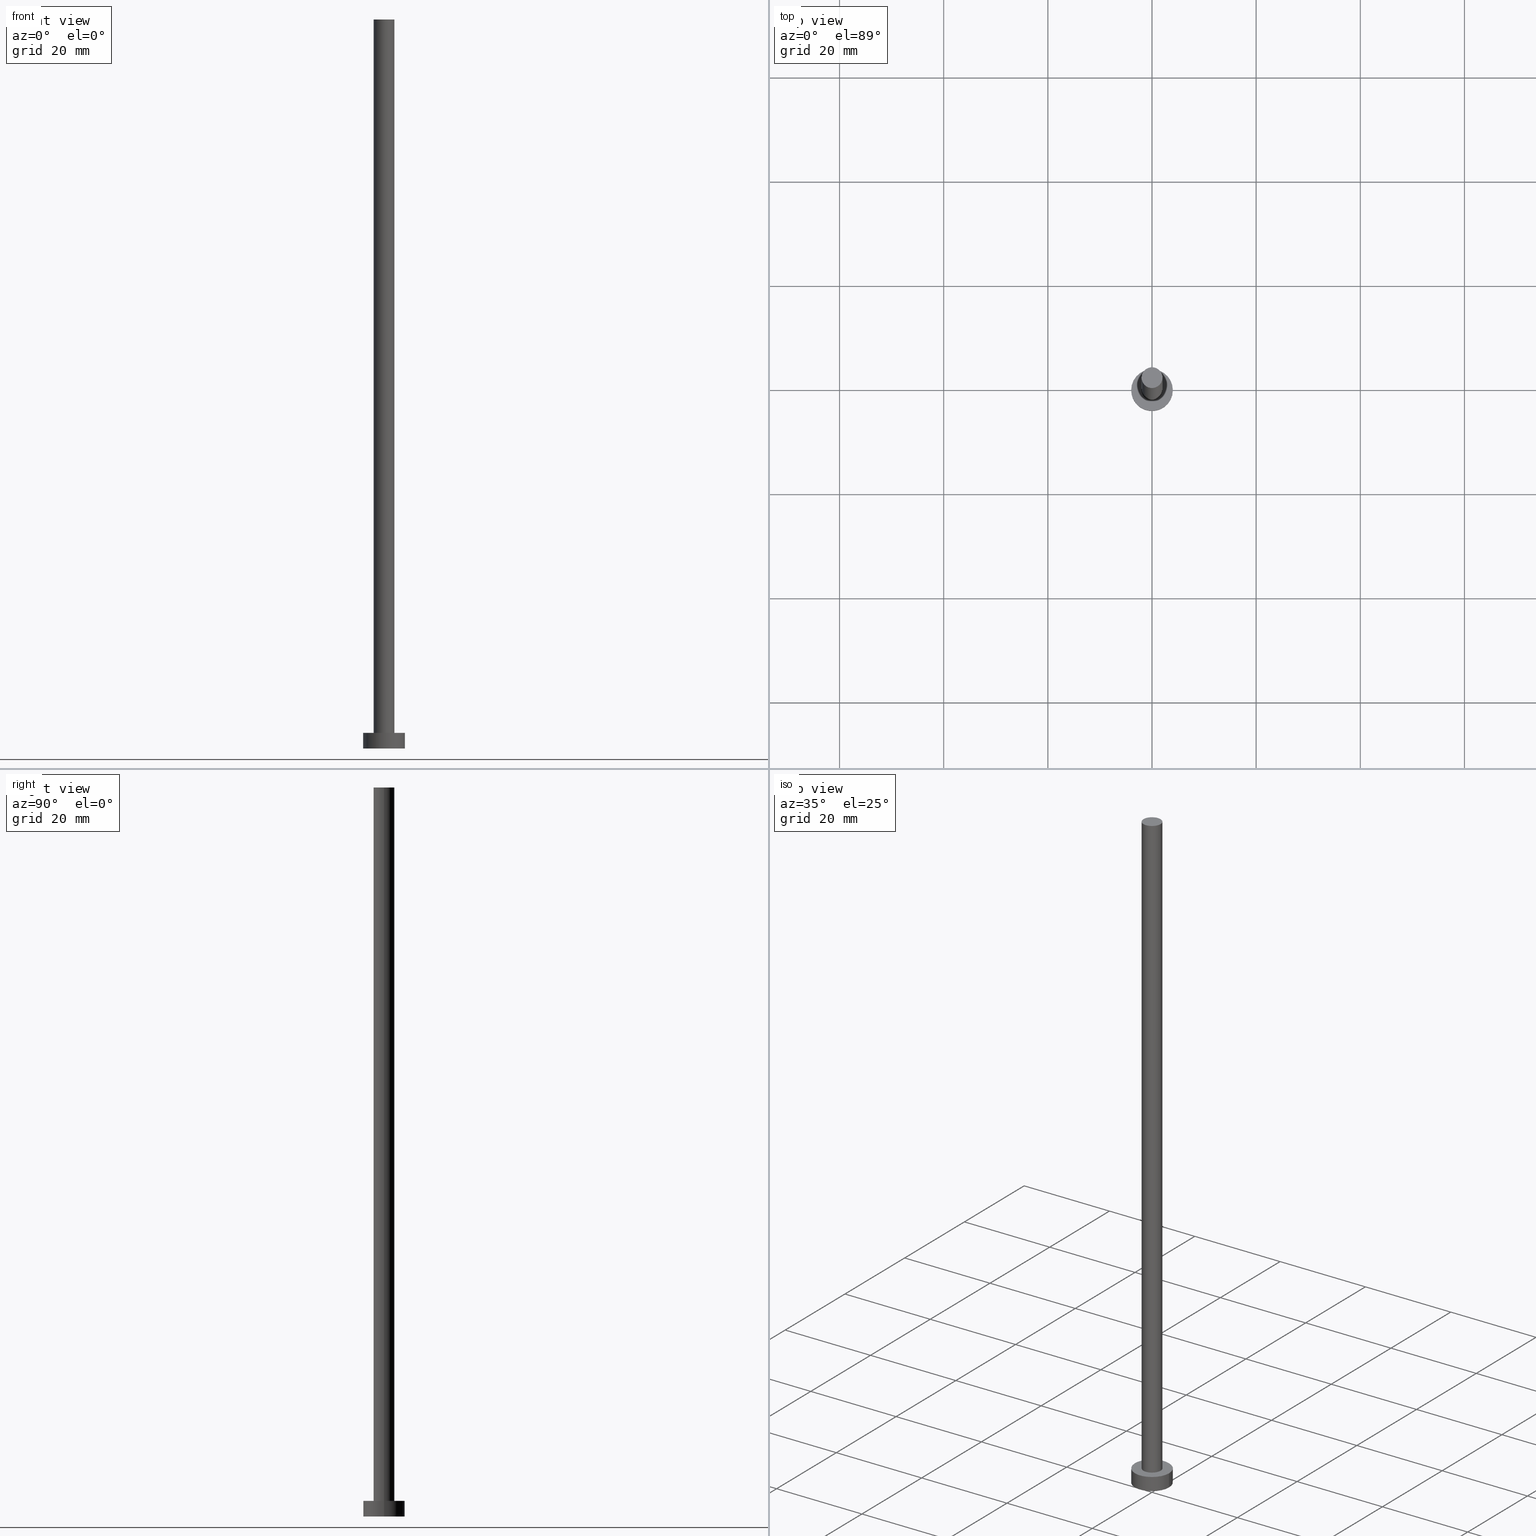
[diagram: canonical four-view strip — front | top / right | iso, engineering-drawing reading convention]
A machine part, canonical four-view strip (front | top / right | iso — engineering-drawing reading convention). The complete STEP part file that produces these views, byte-faithful:
ISO-10303-21;
HEADER;
FILE_DESCRIPTION (( 'STEP AP203' ),
    '1' );
FILE_NAME ('98c5.STEP',
    '2023-09-27T12:22:14',
    ( '' ),
    ( '' ),
    'SwSTEP 2.0',
    'SolidWorks 2019',
    '' );
FILE_SCHEMA (( 'CONFIG_CONTROL_DESIGN' ));
ENDSEC;

DATA;
#1 = AXIS2_PLACEMENT_3D ( 'NONE', #230, #71, #149 ) ;
#2 = ORIENTED_EDGE ( 'NONE', *, *, #96, .F. ) ;
#3 = ORIENTED_EDGE ( 'NONE', *, *, #45, .F. ) ;
#4 = APPLICATION_PROTOCOL_DEFINITION ( 'international standard', 'config_control_design', 1994, #29 ) ;
#5 = CIRCLE ( 'NONE', #251, 4.000000000000000000 ) ;
#6 = ORIENTED_EDGE ( 'NONE', *, *, #28, .F. ) ;
#7 = APPROVAL ( #93, 'NEUR�EN�' ) ;
#8 = CARTESIAN_POINT ( 'NONE',  ( 2.000000000000000000, 2.449293598294706414E-16, 140.0000000000000000 ) ) ;
#9 = COORDINATED_UNIVERSAL_TIME_OFFSET ( 1, 0, .AHEAD. ) ;
#10 = CARTESIAN_POINT ( 'NONE',  ( -4.000000000000000000, 0.000000000000000000, 0.000000000000000000 ) ) ;
#11 = PERSON_AND_ORGANIZATION ( #114, #170 ) ;
#12 = CARTESIAN_POINT ( 'NONE',  ( -4.000000000000000000, 0.000000000000000000, 3.000000000000000000 ) ) ;
#13 = CALENDAR_DATE ( 2023, 27, 9 ) ;
#14 = VERTEX_POINT ( 'NONE', #19 ) ;
#15 = CC_DESIGN_PERSON_AND_ORGANIZATION_ASSIGNMENT ( #131, #185, ( #197 ) ) ;
#16 = VERTEX_POINT ( 'NONE', #60 ) ;
#17 = EDGE_LOOP ( 'NONE', ( #237, #176 ) ) ;
#18 = EDGE_CURVE ( 'NONE', #190, #16, #77, .T. ) ;
#19 = CARTESIAN_POINT ( 'NONE',  ( 2.000000000000000000, 2.449293598294706414E-16, 140.0000000000000000 ) ) ;
#20 = DIRECTION ( 'NONE',  ( -0.000000000000000000, -0.000000000000000000, -1.000000000000000000 ) ) ;
#21 = AXIS2_PLACEMENT_3D ( 'NONE', #152, #164, #250 ) ;
#22 = CYLINDRICAL_SURFACE ( 'NONE', #193, 2.000000000000000000 ) ;
#23 = CARTESIAN_POINT ( 'NONE',  ( 0.000000000000000000, 0.000000000000000000, 3.000000000000000000 ) ) ;
#24 = CARTESIAN_POINT ( 'NONE',  ( 0.000000000000000000, 0.000000000000000000, 0.000000000000000000 ) ) ;
#25 = AXIS2_PLACEMENT_3D ( 'NONE', #85, #222, #245 ) ;
#26 = VECTOR ( 'NONE', #218, 1000.000000000000000 ) ;
#27 = PERSON_AND_ORGANIZATION ( #114, #170 ) ;
#28 = EDGE_CURVE ( 'NONE', #142, #74, #106, .T. ) ;
#29 = APPLICATION_CONTEXT ( 'configuration controlled 3d designs of mechanical parts and assemblies' ) ;
#30 = DIRECTION ( 'NONE',  ( 1.000000000000000000, 0.000000000000000000, 0.000000000000000000 ) ) ;
#31 = CIRCLE ( 'NONE', #1, 2.000000000000000000 ) ;
#32 = EDGE_LOOP ( 'NONE', ( #117, #154, #42, #116 ) ) ;
#33 = CC_DESIGN_DATE_AND_TIME_ASSIGNMENT ( #54, #50, ( #121 ) ) ;
#34 = DATE_AND_TIME ( #208, #186 ) ;
#35 = DIRECTION ( 'NONE',  ( 1.000000000000000000, 0.000000000000000000, 0.000000000000000000 ) ) ;
#36 = EDGE_CURVE ( 'NONE', #194, #140, #105, .T. ) ;
#37 = DIRECTION ( 'NONE',  ( 1.000000000000000000, 0.000000000000000000, 0.000000000000000000 ) ) ;
#38 = CARTESIAN_POINT ( 'NONE',  ( 0.000000000000000000, 0.000000000000000000, 0.000000000000000000 ) ) ;
#39 = APPLICATION_CONTEXT ( 'configuration controlled 3d designs of mechanical parts and assemblies' ) ;
#40 = FACE_OUTER_BOUND ( 'NONE', #32, .T. ) ;
#41 = ADVANCED_FACE ( 'NONE', ( #40 ), #159, .T. ) ;
#42 = ORIENTED_EDGE ( 'NONE', *, *, #96, .T. ) ;
#43 = PLANE ( 'NONE',  #25 ) ;
#44 = DIRECTION ( 'NONE',  ( 0.000000000000000000, 0.000000000000000000, 1.000000000000000000 ) ) ;
#45 = EDGE_CURVE ( 'NONE', #140, #171, #110, .T. ) ;
#46 = DIRECTION ( 'NONE',  ( 0.000000000000000000, 0.000000000000000000, 1.000000000000000000 ) ) ;
#47 = PERSON_AND_ORGANIZATION ( #114, #170 ) ;
#48 = CARTESIAN_POINT ( 'NONE',  ( 2.000000000000000000, 2.449293598294706414E-16, 3.000000000000000000 ) ) ;
#49 = APPROVAL ( #204, 'NEUR�EN�' ) ;
#50 = DATE_TIME_ROLE ( 'creation_date' ) ;
#51 = PLANE ( 'NONE',  #221 ) ;
#52 = PERSON_AND_ORGANIZATION_ROLE ( 'classification_officer' ) ;
#53 = ORIENTED_EDGE ( 'NONE', *, *, #28, .T. ) ;
#54 = DATE_AND_TIME ( #151, #181 ) ;
#55 = APPROVAL_PERSON_ORGANIZATION ( #150, #49, #90 ) ;
#56 = ORIENTED_EDGE ( 'NONE', *, *, #45, .T. ) ;
#57 = FACE_OUTER_BOUND ( 'NONE', #179, .T. ) ;
#58 = ORIENTED_EDGE ( 'NONE', *, *, #36, .F. ) ;
#59 =( NAMED_UNIT ( * ) SI_UNIT ( $, .STERADIAN. ) SOLID_ANGLE_UNIT ( ) );
#60 = CARTESIAN_POINT ( 'NONE',  ( 4.000000000000000000, 4.898587196589412829E-16, 0.000000000000000000 ) ) ;
#61 = DIRECTION ( 'NONE',  ( 0.000000000000000000, 0.000000000000000000, 1.000000000000000000 ) ) ;
#62 = EDGE_LOOP ( 'NONE', ( #75, #6, #95, #97 ) ) ;
#63 = CYLINDRICAL_SURFACE ( 'NONE', #212, 4.000000000000000000 ) ;
#64 = CARTESIAN_POINT ( 'NONE',  ( 0.000000000000000000, 0.000000000000000000, 140.0000000000000000 ) ) ;
#65 = EDGE_CURVE ( 'NONE', #194, #14, #246, .T. ) ;
#66 = AXIS2_PLACEMENT_3D ( 'NONE', #38, #216, #215 ) ;
#67 = PERSON_AND_ORGANIZATION ( #114, #170 ) ;
#68 = DIRECTION ( 'NONE',  ( 0.000000000000000000, 0.000000000000000000, 1.000000000000000000 ) ) ;
#69 = ADVANCED_BREP_SHAPE_REPRESENTATION ( '98c5', ( #112, #161 ), #80 ) ;
#70 = PRODUCT_RELATED_PRODUCT_CATEGORY ( 'detail', '', ( #102 ) ) ;
#71 = DIRECTION ( 'NONE',  ( 0.000000000000000000, 0.000000000000000000, 1.000000000000000000 ) ) ;
#72 = APPROVAL_DATE_TIME ( #225, #109 ) ;
#73 = AXIS2_PLACEMENT_3D ( 'NONE', #88, #68, #30 ) ;
#74 = VERTEX_POINT ( 'NONE', #118 ) ;
#75 = ORIENTED_EDGE ( 'NONE', *, *, #253, .F. ) ;
#76 = FACE_OUTER_BOUND ( 'NONE', #62, .T. ) ;
#77 = CIRCLE ( 'NONE', #233, 4.000000000000000000 ) ;
#78 = CARTESIAN_POINT ( 'NONE',  ( 0.000000000000000000, 0.000000000000000000, 3.000000000000000000 ) ) ;
#79 = LOCAL_TIME ( 14, 22, 14.00000000000000000, #127 ) ;
#80 =( GEOMETRIC_REPRESENTATION_CONTEXT ( 3 ) GLOBAL_UNCERTAINTY_ASSIGNED_CONTEXT ( ( #180 ) ) GLOBAL_UNIT_ASSIGNED_CONTEXT ( ( #139, #155, #59 ) ) REPRESENTATION_CONTEXT ( 'NONE', 'WORKASPACE' ) );
#81 = ORIENTED_EDGE ( 'NONE', *, *, #107, .T. ) ;
#82 = CC_DESIGN_PERSON_AND_ORGANIZATION_ASSIGNMENT ( #11, #184, ( #121 ) ) ;
#83 = DIRECTION ( 'NONE',  ( -0.000000000000000000, -0.000000000000000000, -1.000000000000000000 ) ) ;
#84 = CARTESIAN_POINT ( 'NONE',  ( 4.000000000000000000, 4.898587196589412829E-16, 3.000000000000000000 ) ) ;
#85 = CARTESIAN_POINT ( 'NONE',  ( 0.000000000000000000, 0.000000000000000000, 140.0000000000000000 ) ) ;
#86 = APPLICATION_PROTOCOL_DEFINITION ( 'international standard', 'config_control_design', 1994, #39 ) ;
#87 = CC_DESIGN_APPROVAL ( #109, ( #121 ) ) ;
#88 = CARTESIAN_POINT ( 'NONE',  ( 0.000000000000000000, 0.000000000000000000, 3.000000000000000000 ) ) ;
#89 = APPROVAL_DATE_TIME ( #229, #7 ) ;
#90 = APPROVAL_ROLE ( '' ) ;
#91 = ADVANCED_FACE ( 'NONE', ( #145 ), #22, .T. ) ;
#92 = CARTESIAN_POINT ( 'NONE',  ( -2.000000000000000000, 0.000000000000000000, 140.0000000000000000 ) ) ;
#93 = APPROVAL_STATUS ( 'not_yet_approved' ) ;
#94 = APPROVAL_DATE_TIME ( #165, #49 ) ;
#95 = ORIENTED_EDGE ( 'NONE', *, *, #228, .T. ) ;
#96 = EDGE_CURVE ( 'NONE', #16, #190, #5, .T. ) ;
#97 = ORIENTED_EDGE ( 'NONE', *, *, #18, .T. ) ;
#98 = LINE ( 'NONE', #143, #26 ) ;
#99 = DIRECTION ( 'NONE',  ( 0.000000000000000000, 0.000000000000000000, 1.000000000000000000 ) ) ;
#100 = DIRECTION ( 'NONE',  ( -1.000000000000000000, 0.000000000000000000, 0.000000000000000000 ) ) ;
#101 = SECURITY_CLASSIFICATION ( '', '', #206 ) ;
#102 = PRODUCT ( '98c5', '98c5', '', ( #202 ) ) ;
#103 = CARTESIAN_POINT ( 'NONE',  ( 0.000000000000000000, 0.000000000000000000, 3.000000000000000000 ) ) ;
#104 = LINE ( 'NONE', #84, #144 ) ;
#105 = LINE ( 'NONE', #214, #125 ) ;
#106 = CIRCLE ( 'NONE', #120, 4.000000000000000000 ) ;
#107 = EDGE_CURVE ( 'NONE', #74, #142, #137, .T. ) ;
#108 = PERSON_AND_ORGANIZATION_ROLE ( 'design_owner' ) ;
#109 = APPROVAL ( #167, 'NEUR�EN�' ) ;
#110 = CIRCLE ( 'NONE', #175, 2.000000000000000000 ) ;
#111 = CC_DESIGN_SECURITY_CLASSIFICATION ( #101, ( #197 ) ) ;
#112 = MANIFOLD_SOLID_BREP ( 'P�idat vysunut�m3', #240 ) ;
#113 = COORDINATED_UNIVERSAL_TIME_OFFSET ( 1, 0, .AHEAD. ) ;
#114 = PERSON ( 'NEUR�EN�', 'NEUR�EN�', 'NEUR�EN�', ('NEUR�EN�'), ('NEUR�EN�'), ('NEUR�EN�') ) ;
#115 = ADVANCED_FACE ( 'NONE', ( #243 ), #43, .T. ) ;
#116 = ORIENTED_EDGE ( 'NONE', *, *, #228, .F. ) ;
#117 = ORIENTED_EDGE ( 'NONE', *, *, #107, .F. ) ;
#118 = CARTESIAN_POINT ( 'NONE',  ( 4.000000000000000000, 4.898587196589412829E-16, 3.000000000000000000 ) ) ;
#119 = DIRECTION ( 'NONE',  ( 0.000000000000000000, 0.000000000000000000, 1.000000000000000000 ) ) ;
#120 = AXIS2_PLACEMENT_3D ( 'NONE', #103, #99, #173 ) ;
#121 = PRODUCT_DEFINITION ( 'NEZN�M�', '', #197, #146 ) ;
#122 = LOCAL_TIME ( 14, 22, 14.00000000000000000, #113 ) ;
#123 = LINE ( 'NONE', #8, #224 ) ;
#124 = EDGE_CURVE ( 'NONE', #171, #140, #163, .T. ) ;
#125 = VECTOR ( 'NONE', #83, 1000.000000000000000 ) ;
#126 = AXIS2_PLACEMENT_3D ( 'NONE', #247, #46, #162 ) ;
#127 = COORDINATED_UNIVERSAL_TIME_OFFSET ( 1, 0, .AHEAD. ) ;
#128 = CYLINDRICAL_SURFACE ( 'NONE', #21, 2.000000000000000000 ) ;
#129 = PERSON_AND_ORGANIZATION ( #114, #170 ) ;
#130 = CARTESIAN_POINT ( 'NONE',  ( 0.000000000000000000, 0.000000000000000000, 3.000000000000000000 ) ) ;
#131 = PERSON_AND_ORGANIZATION ( #114, #170 ) ;
#132 = CARTESIAN_POINT ( 'NONE',  ( -2.000000000000000000, 0.000000000000000000, 3.000000000000000000 ) ) ;
#133 = COORDINATED_UNIVERSAL_TIME_OFFSET ( 1, 0, .AHEAD. ) ;
#134 = EDGE_LOOP ( 'NONE', ( #3, #231 ) ) ;
#135 = CC_DESIGN_PERSON_AND_ORGANIZATION_ASSIGNMENT ( #129, #255, ( #197 ) ) ;
#136 = ORIENTED_EDGE ( 'NONE', *, *, #18, .F. ) ;
#137 = CIRCLE ( 'NONE', #73, 4.000000000000000000 ) ;
#138 = ORIENTED_EDGE ( 'NONE', *, *, #203, .T. ) ;
#139 =( LENGTH_UNIT ( ) NAMED_UNIT ( * ) SI_UNIT ( .MILLI., .METRE. ) );
#140 = VERTEX_POINT ( 'NONE', #132 ) ;
#141 = DIRECTION ( 'NONE',  ( 1.000000000000000000, 0.000000000000000000, 0.000000000000000000 ) ) ;
#142 = VERTEX_POINT ( 'NONE', #12 ) ;
#143 = CARTESIAN_POINT ( 'NONE',  ( -4.000000000000000000, 0.000000000000000000, 3.000000000000000000 ) ) ;
#144 = VECTOR ( 'NONE', #172, 1000.000000000000000 ) ;
#145 = FACE_OUTER_BOUND ( 'NONE', #235, .T. ) ;
#146 = DESIGN_CONTEXT ( 'detailed design', #39, 'design' ) ;
#147 = APPROVAL_ROLE ( '' ) ;
#148 = CC_DESIGN_APPROVAL ( #49, ( #101 ) ) ;
#149 = DIRECTION ( 'NONE',  ( 1.000000000000000000, 0.000000000000000000, 0.000000000000000000 ) ) ;
#150 = PERSON_AND_ORGANIZATION ( #114, #170 ) ;
#151 = CALENDAR_DATE ( 2023, 27, 9 ) ;
#152 = CARTESIAN_POINT ( 'NONE',  ( 0.000000000000000000, 0.000000000000000000, 140.0000000000000000 ) ) ;
#153 = ADVANCED_FACE ( 'NONE', ( #57 ), #128, .T. ) ;
#154 = ORIENTED_EDGE ( 'NONE', *, *, #253, .T. ) ;
#155 =( NAMED_UNIT ( * ) PLANE_ANGLE_UNIT ( ) SI_UNIT ( $, .RADIAN. ) );
#156 = DIRECTION ( 'NONE',  ( -1.000000000000000000, 0.000000000000000000, 0.000000000000000000 ) ) ;
#157 = EDGE_LOOP ( 'NONE', ( #136, #2 ) ) ;
#158 = AXIS2_PLACEMENT_3D ( 'NONE', #78, #198, #156 ) ;
#159 = CYLINDRICAL_SURFACE ( 'NONE', #158, 4.000000000000000000 ) ;
#160 = CC_DESIGN_PERSON_AND_ORGANIZATION_ASSIGNMENT ( #47, #52, ( #101 ) ) ;
#161 = AXIS2_PLACEMENT_3D ( 'NONE', #234, #44, #249 ) ;
#162 = DIRECTION ( 'NONE',  ( 1.000000000000000000, 0.000000000000000000, 0.000000000000000000 ) ) ;
#163 = CIRCLE ( 'NONE', #126, 2.000000000000000000 ) ;
#164 = DIRECTION ( 'NONE',  ( -0.000000000000000000, -0.000000000000000000, -1.000000000000000000 ) ) ;
#165 = DATE_AND_TIME ( #13, #122 ) ;
#166 = EDGE_LOOP ( 'NONE', ( #53, #81 ) ) ;
#167 = APPROVAL_STATUS ( 'not_yet_approved' ) ;
#168 = SHAPE_DEFINITION_REPRESENTATION ( #199, #69 ) ;
#169 = EDGE_CURVE ( 'NONE', #14, #194, #31, .T. ) ;
#170 = ORGANIZATION ( 'NEUR�EN�', 'NEUR�EN�', '' ) ;
#171 = VERTEX_POINT ( 'NONE', #48 ) ;
#172 = DIRECTION ( 'NONE',  ( -0.000000000000000000, -0.000000000000000000, -1.000000000000000000 ) ) ;
#173 = DIRECTION ( 'NONE',  ( 1.000000000000000000, 0.000000000000000000, 0.000000000000000000 ) ) ;
#174 = PLANE ( 'NONE',  #66 ) ;
#175 = AXIS2_PLACEMENT_3D ( 'NONE', #23, #241, #37 ) ;
#176 = ORIENTED_EDGE ( 'NONE', *, *, #169, .T. ) ;
#177 = ORIENTED_EDGE ( 'NONE', *, *, #203, .F. ) ;
#178 = ADVANCED_FACE ( 'NONE', ( #205, #226 ), #51, .T. ) ;
#179 = EDGE_LOOP ( 'NONE', ( #177, #192, #227, #56 ) ) ;
#180 = UNCERTAINTY_MEASURE_WITH_UNIT (LENGTH_MEASURE( 1.000000000000000082E-05 ), #139, 'distance_accuracy_value', 'NONE');
#181 = LOCAL_TIME ( 14, 22, 14.00000000000000000, #9 ) ;
#182 = AXIS2_PLACEMENT_3D ( 'NONE', #64, #61, #141 ) ;
#183 = CC_DESIGN_APPROVAL ( #7, ( #197 ) ) ;
#184 = PERSON_AND_ORGANIZATION_ROLE ( 'creator' ) ;
#185 = PERSON_AND_ORGANIZATION_ROLE ( 'creator' ) ;
#186 = LOCAL_TIME ( 14, 22, 14.00000000000000000, #210 ) ;
#187 = LOCAL_TIME ( 14, 22, 14.00000000000000000, #133 ) ;
#188 = DIRECTION ( 'NONE',  ( 1.000000000000000000, 0.000000000000000000, -0.000000000000000000 ) ) ;
#189 = DATE_TIME_ROLE ( 'classification_date' ) ;
#190 = VERTEX_POINT ( 'NONE', #10 ) ;
#191 = APPROVAL_ROLE ( '' ) ;
#192 = ORIENTED_EDGE ( 'NONE', *, *, #65, .F. ) ;
#193 = AXIS2_PLACEMENT_3D ( 'NONE', #232, #219, #200 ) ;
#194 = VERTEX_POINT ( 'NONE', #92 ) ;
#195 = ORIENTED_EDGE ( 'NONE', *, *, #169, .F. ) ;
#196 = DIRECTION ( 'NONE',  ( 1.000000000000000000, 0.000000000000000000, 0.000000000000000000 ) ) ;
#197 = PRODUCT_DEFINITION_FORMATION_WITH_SPECIFIED_SOURCE ( 'LIBOVOLN�', '', #102, .NOT_KNOWN. ) ;
#198 = DIRECTION ( 'NONE',  ( -0.000000000000000000, -0.000000000000000000, -1.000000000000000000 ) ) ;
#199 = PRODUCT_DEFINITION_SHAPE ( 'NONE', 'NONE',  #121 ) ;
#200 = DIRECTION ( 'NONE',  ( -1.000000000000000000, 0.000000000000000000, 0.000000000000000000 ) ) ;
#201 = APPROVAL_PERSON_ORGANIZATION ( #67, #109, #191 ) ;
#202 = MECHANICAL_CONTEXT ( 'NONE', #29, 'mechanical' ) ;
#203 = EDGE_CURVE ( 'NONE', #14, #171, #123, .T. ) ;
#204 = APPROVAL_STATUS ( 'not_yet_approved' ) ;
#205 = FACE_BOUND ( 'NONE', #134, .T. ) ;
#206 = SECURITY_CLASSIFICATION_LEVEL ( 'unclassified' ) ;
#207 = DIRECTION ( 'NONE',  ( 0.000000000000000000, 0.000000000000000000, 1.000000000000000000 ) ) ;
#208 = CALENDAR_DATE ( 2023, 27, 9 ) ;
#209 = APPROVAL_PERSON_ORGANIZATION ( #211, #7, #147 ) ;
#210 = COORDINATED_UNIVERSAL_TIME_OFFSET ( 1, 0, .AHEAD. ) ;
#211 = PERSON_AND_ORGANIZATION ( #114, #170 ) ;
#212 = AXIS2_PLACEMENT_3D ( 'NONE', #242, #20, #100 ) ;
#213 = DIRECTION ( 'NONE',  ( 0.000000000000000000, 0.000000000000000000, 1.000000000000000000 ) ) ;
#214 = CARTESIAN_POINT ( 'NONE',  ( -2.000000000000000000, 0.000000000000000000, 140.0000000000000000 ) ) ;
#215 = DIRECTION ( 'NONE',  ( 1.000000000000000000, 0.000000000000000000, -0.000000000000000000 ) ) ;
#216 = DIRECTION ( 'NONE',  ( 0.000000000000000000, 0.000000000000000000, 1.000000000000000000 ) ) ;
#217 = CARTESIAN_POINT ( 'NONE',  ( 0.000000000000000000, 0.000000000000000000, 0.000000000000000000 ) ) ;
#218 = DIRECTION ( 'NONE',  ( -0.000000000000000000, -0.000000000000000000, -1.000000000000000000 ) ) ;
#219 = DIRECTION ( 'NONE',  ( -0.000000000000000000, -0.000000000000000000, -1.000000000000000000 ) ) ;
#220 = ADVANCED_FACE ( 'NONE', ( #76 ), #63, .T. ) ;
#221 = AXIS2_PLACEMENT_3D ( 'NONE', #130, #207, #188 ) ;
#222 = DIRECTION ( 'NONE',  ( 0.000000000000000000, 0.000000000000000000, 1.000000000000000000 ) ) ;
#223 = CALENDAR_DATE ( 2023, 27, 9 ) ;
#224 = VECTOR ( 'NONE', #239, 1000.000000000000000 ) ;
#225 = DATE_AND_TIME ( #252, #187 ) ;
#226 = FACE_OUTER_BOUND ( 'NONE', #166, .T. ) ;
#227 = ORIENTED_EDGE ( 'NONE', *, *, #36, .T. ) ;
#228 = EDGE_CURVE ( 'NONE', #142, #190, #98, .T. ) ;
#229 = DATE_AND_TIME ( #223, #79 ) ;
#230 = CARTESIAN_POINT ( 'NONE',  ( 0.000000000000000000, 0.000000000000000000, 140.0000000000000000 ) ) ;
#231 = ORIENTED_EDGE ( 'NONE', *, *, #124, .F. ) ;
#232 = CARTESIAN_POINT ( 'NONE',  ( 0.000000000000000000, 0.000000000000000000, 140.0000000000000000 ) ) ;
#233 = AXIS2_PLACEMENT_3D ( 'NONE', #217, #119, #196 ) ;
#234 = CARTESIAN_POINT ( 'NONE',  ( 0.000000000000000000, 0.000000000000000000, 0.000000000000000000 ) ) ;
#235 = EDGE_LOOP ( 'NONE', ( #195, #138, #254, #58 ) ) ;
#236 = FACE_OUTER_BOUND ( 'NONE', #157, .T. ) ;
#237 = ORIENTED_EDGE ( 'NONE', *, *, #65, .T. ) ;
#238 = ADVANCED_FACE ( 'NONE', ( #236 ), #174, .F. ) ;
#239 = DIRECTION ( 'NONE',  ( -0.000000000000000000, -0.000000000000000000, -1.000000000000000000 ) ) ;
#240 = CLOSED_SHELL ( 'NONE', ( #91, #41, #220, #178, #238, #153, #115 ) ) ;
#241 = DIRECTION ( 'NONE',  ( 0.000000000000000000, 0.000000000000000000, 1.000000000000000000 ) ) ;
#242 = CARTESIAN_POINT ( 'NONE',  ( 0.000000000000000000, 0.000000000000000000, 3.000000000000000000 ) ) ;
#243 = FACE_OUTER_BOUND ( 'NONE', #17, .T. ) ;
#244 = CC_DESIGN_PERSON_AND_ORGANIZATION_ASSIGNMENT ( #27, #108, ( #102 ) ) ;
#245 = DIRECTION ( 'NONE',  ( 1.000000000000000000, 0.000000000000000000, -0.000000000000000000 ) ) ;
#246 = CIRCLE ( 'NONE', #182, 2.000000000000000000 ) ;
#247 = CARTESIAN_POINT ( 'NONE',  ( 0.000000000000000000, 0.000000000000000000, 3.000000000000000000 ) ) ;
#248 = CC_DESIGN_DATE_AND_TIME_ASSIGNMENT ( #34, #189, ( #101 ) ) ;
#249 = DIRECTION ( 'NONE',  ( 1.000000000000000000, 0.000000000000000000, 0.000000000000000000 ) ) ;
#250 = DIRECTION ( 'NONE',  ( -1.000000000000000000, 0.000000000000000000, 0.000000000000000000 ) ) ;
#251 = AXIS2_PLACEMENT_3D ( 'NONE', #24, #213, #35 ) ;
#252 = CALENDAR_DATE ( 2023, 27, 9 ) ;
#253 = EDGE_CURVE ( 'NONE', #74, #16, #104, .T. ) ;
#254 = ORIENTED_EDGE ( 'NONE', *, *, #124, .T. ) ;
#255 = PERSON_AND_ORGANIZATION_ROLE ( 'design_supplier' ) ;
ENDSEC;
END-ISO-10303-21;
